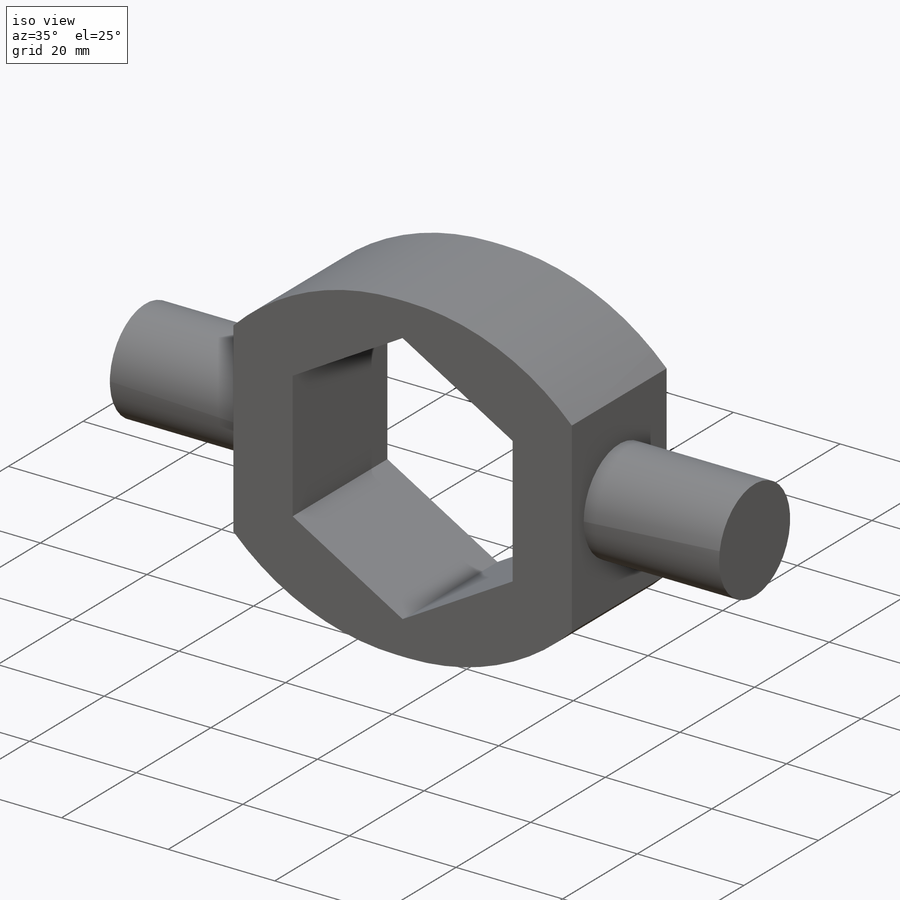
[diagram: iso view]
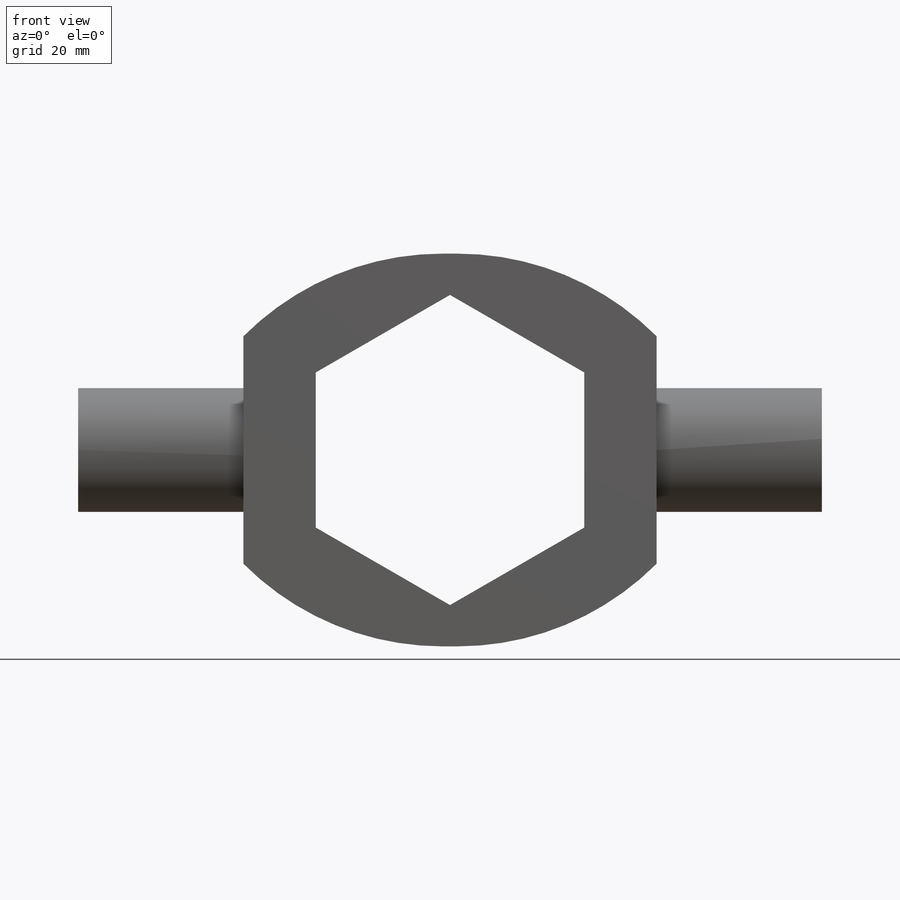
[diagram: front view]
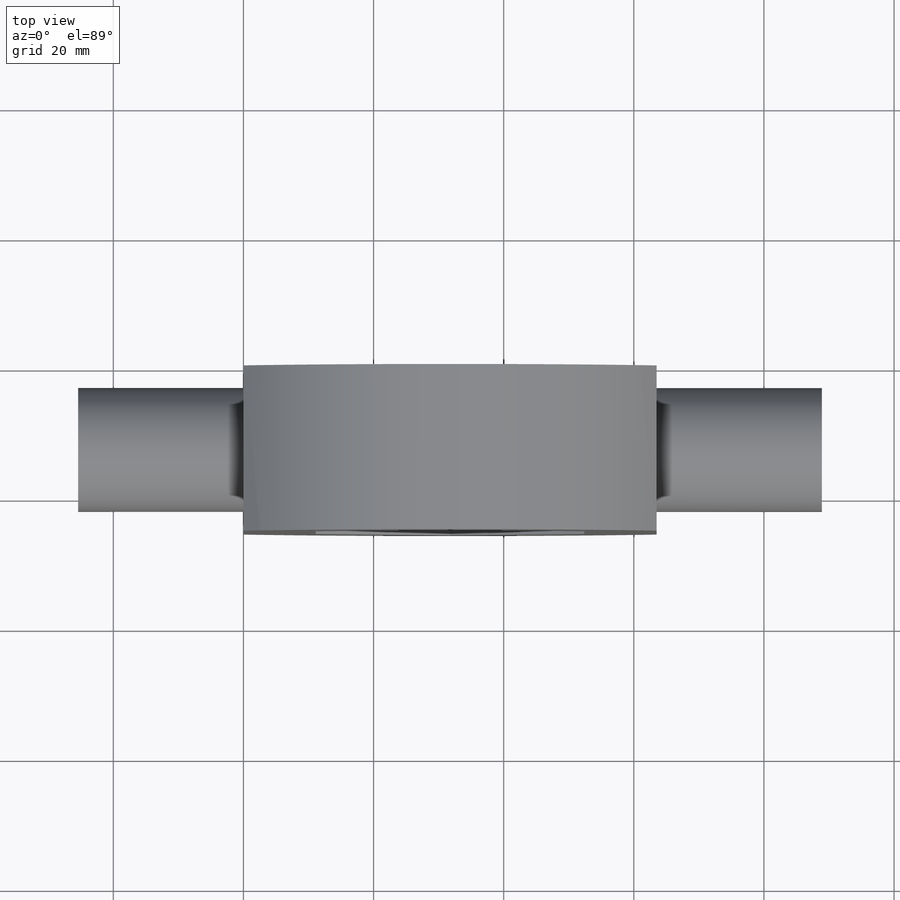
[diagram: top view]
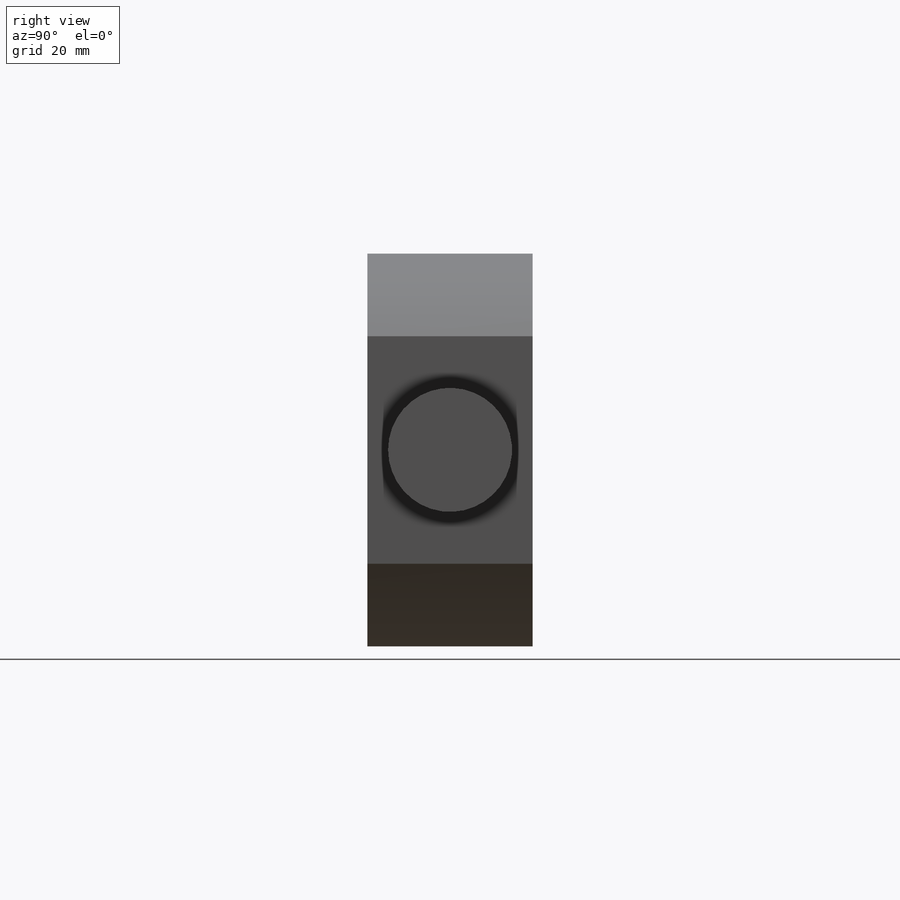
[diagram: right view]
SOLIDWORKS PART (.sldprt)
format: sldprt  version: not decoded by parser v0  size: 213,504 bytes
history: native  units: mm
features: sketch x2, extrude x2, material x1, chamfer x1, plane x1, mirror x1, fillet x1 (+13 scaffold rows collapsed)
feature tree (22):
  scaffold x13  (default folders/planes/origin — collapsed)
  material  "Plain Carbon Steel"
  sketch  "Sketch1"  dims[c1.D1=41.275mm c1.D2=~23.824852mm c2.D2=~178.793809deg c3.D2=11.1125mm c3.D3=11.1125mm c3.D4=6.35mm c3.D5=6.35mm]
  extrude  "Boss-Extrude1"  Depth=25.4mm
  chamfer  "Chamfer1"  Distance=12.7mm Angle=45deg
  sketch  "Sketch2"  dims[c1.D1=19.05mm c1.D2=19.05mm c1.D3=19.05mm c2.D2=12.7mm c2.D3=~17.066984mm]
  extrude  "Boss-Extrude2"  Depth=25.4mm
  plane  "Plane1"
  mirror  "Mirror1"
  fillet  "Fillet1"  Radius=43.18mm
decode coverage: 6 of 7 modeling features carry decoded parameters
note: ~ marks probable driven/reference dimensions
note: suppression state not decoded; provenance and decode notes live in map.json
